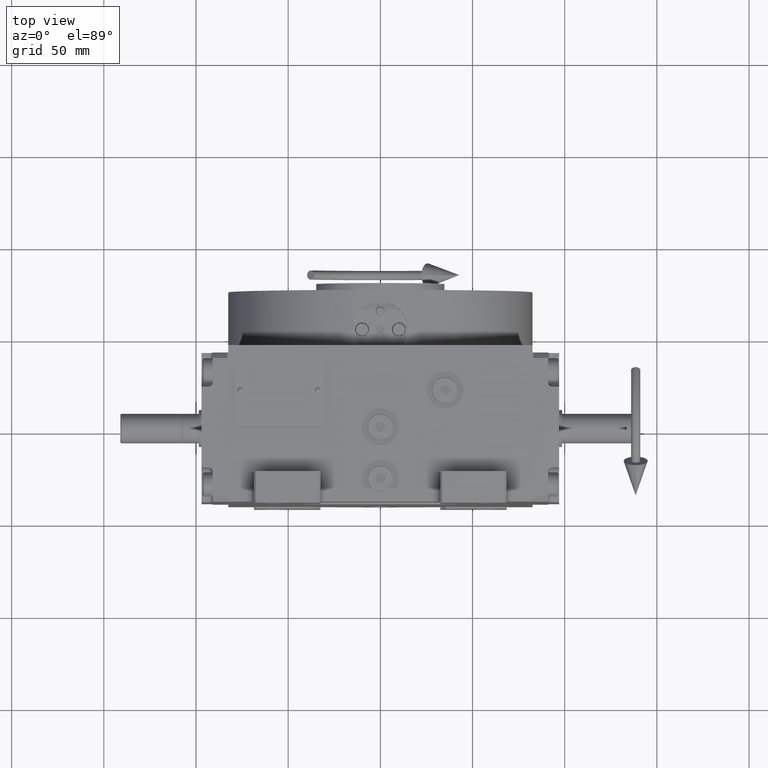
[diagram: clean part render]
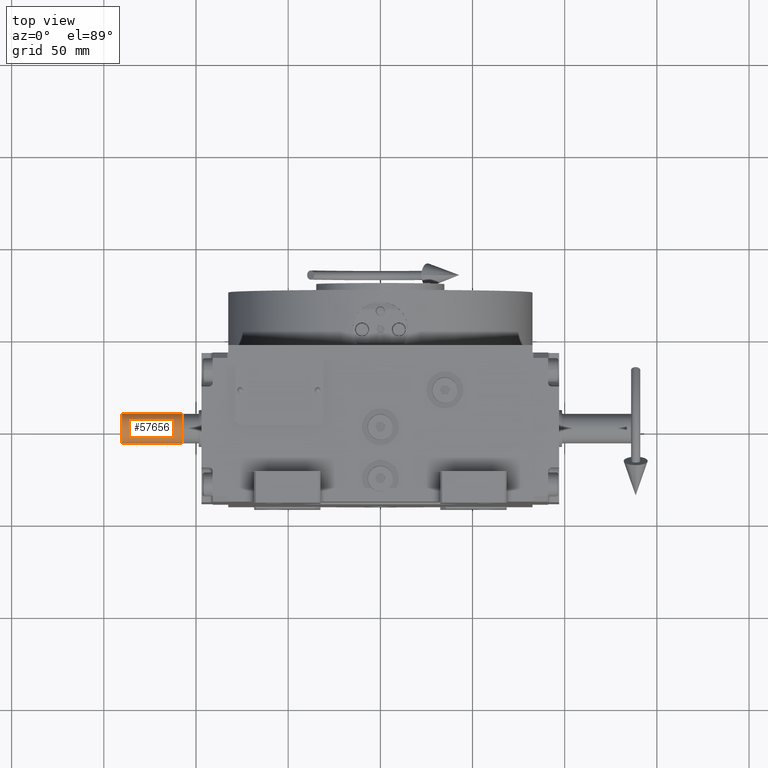
[diagram: same view with one face highlighted and labeled with its STEP entity id]
A machine part, top view. The second image highlights one B-rep face of the part: STEP entity #57656.
In plain terms, the highlighted cylindrical surface (edge-blend (fillet) strip) has radius 8 mm, axis along (-1, 0, -0).
Its self-contained STEP definition (entity closure, byte-faithful):
#199 = EDGE_CURVE ( 'NONE', #55694, #23564, #56859, .T. ) ;
#2232 = ORIENTED_EDGE ( 'NONE', *, *, #5572, .F. ) ;
#2370 = CARTESIAN_POINT ( 'NONE',  ( -8.326672684688674053E-14, -14.50000000000001243, -8.881784197025048313E-16 ) ) ;
#3404 = LINE ( 'NONE', #13419, #41908 ) ;
#5572 = EDGE_CURVE ( 'NONE', #23564, #16027, #3404, .T. ) ;
#7251 = CARTESIAN_POINT ( 'NONE',  ( -6.106226635438360972E-13, 18.50000000000054357, -8.000000000000035527 ) ) ;
#9275 = CARTESIAN_POINT ( 'NONE',  ( -5.828670879282071837E-13, 18.50000000000054357, -8.000000000000035527 ) ) ;
#10992 = CARTESIAN_POINT ( 'NONE',  ( 1.065558752344486493E-08, -14.50000000007528556, 7.999999999924675365 ) ) ;
#13348 = CARTESIAN_POINT ( 'NONE',  ( -8.326672684688674053E-14, -14.50000000000001243, -8.000000000000035527 ) ) ;
#13419 = CARTESIAN_POINT ( 'NONE',  ( 1.276756478318930021E-12, -14.50000000000001243, 7.999999999999965361 ) ) ;
#14853 = VECTOR ( 'NONE', #58103, 1000.000000000000000 ) ;
#16027 = VERTEX_POINT ( 'NONE', #58822 ) ;
#16920 = DIRECTION ( 'NONE',  ( -2.220446049250370273E-16, -1.000000000000000000, 2.220446049249956368E-16 ) ) ;
#18902 = DIRECTION ( 'NONE',  ( -1.809663530139005476E-14, 0.000000000000000000, -1.000000000000000000 ) ) ;
#18965 = DIRECTION ( 'NONE',  ( 5.028988270783950259E-30, 1.000000000000000000, 3.217488641336500757E-29 ) ) ;
#23119 = CYLINDRICAL_SURFACE ( 'NONE', #40834, 8.000000000000000000 ) ;
#23186 = CARTESIAN_POINT ( 'NONE',  ( 0.000000000000000000, 18.50000000000054357, -8.881784196997377044E-16 ) ) ;
#23564 = VERTEX_POINT ( 'NONE', #10992 ) ;
#24811 = AXIS2_PLACEMENT_3D ( 'NONE', #2370, #16920, #52491 ) ;
#32839 = EDGE_CURVE ( 'NONE', #16027, #60641, #59660, .T. ) ;
#34742 = EDGE_LOOP ( 'NONE', ( #40491, #62926, #2232, #53783 ) ) ;
#38698 = DIRECTION ( 'NONE',  ( 1.797417062147531962E-14, 0.000000000000000000, 1.000000000000000000 ) ) ;
#40491 = ORIENTED_EDGE ( 'NONE', *, *, #52619, .F. ) ;
#40834 = AXIS2_PLACEMENT_3D ( 'NONE', #52889, #62574, #18902 ) ;
#41908 = VECTOR ( 'NONE', #58682, 1000.000000000000000 ) ;
#49024 = LINE ( 'NONE', #9275, #14853 ) ;
#52491 = DIRECTION ( 'NONE',  ( -1.774068363909806881E-14, -2.168404344971008868E-16, -1.000000000000000000 ) ) ;
#52619 = EDGE_CURVE ( 'NONE', #60641, #55694, #49024, .T. ) ;
#52889 = CARTESIAN_POINT ( 'NONE',  ( -8.326672684688674053E-14, -15.00000000000001421, -3.019858152799185818E-27 ) ) ;
#53498 = AXIS2_PLACEMENT_3D ( 'NONE', #23186, #18965, #38698 ) ;
#53783 = ORIENTED_EDGE ( 'NONE', *, *, #199, .F. ) ;
#55694 = VERTEX_POINT ( 'NONE', #13348 ) ;
#56859 = CIRCLE ( 'NONE', #24811, 8.000000000000000000 ) ;
#57656 = ADVANCED_FACE ( 'NONE', ( #57720 ), #23119, .T. ) ;
#57720 = FACE_OUTER_BOUND ( 'NONE', #34742, .T. ) ;
#58103 = DIRECTION ( 'NONE',  ( -5.028988270783950259E-30, -1.000000000000000000, -3.217488641336500757E-29 ) ) ;
#58682 = DIRECTION ( 'NONE',  ( 5.028988270783950259E-30, 1.000000000000000000, 3.217488641336500757E-29 ) ) ;
#58822 = CARTESIAN_POINT ( 'NONE',  ( 0.000000000000000000, 18.50000000000054357, 7.999999999999965361 ) ) ;
#59660 = CIRCLE ( 'NONE', #53498, 8.000000000000000000 ) ;
#60641 = VERTEX_POINT ( 'NONE', #7251 ) ;
#62574 = DIRECTION ( 'NONE',  ( -5.028988270783950259E-30, -1.000000000000000000, -3.217488641336500757E-29 ) ) ;
#62926 = ORIENTED_EDGE ( 'NONE', *, *, #32839, .F. ) ;